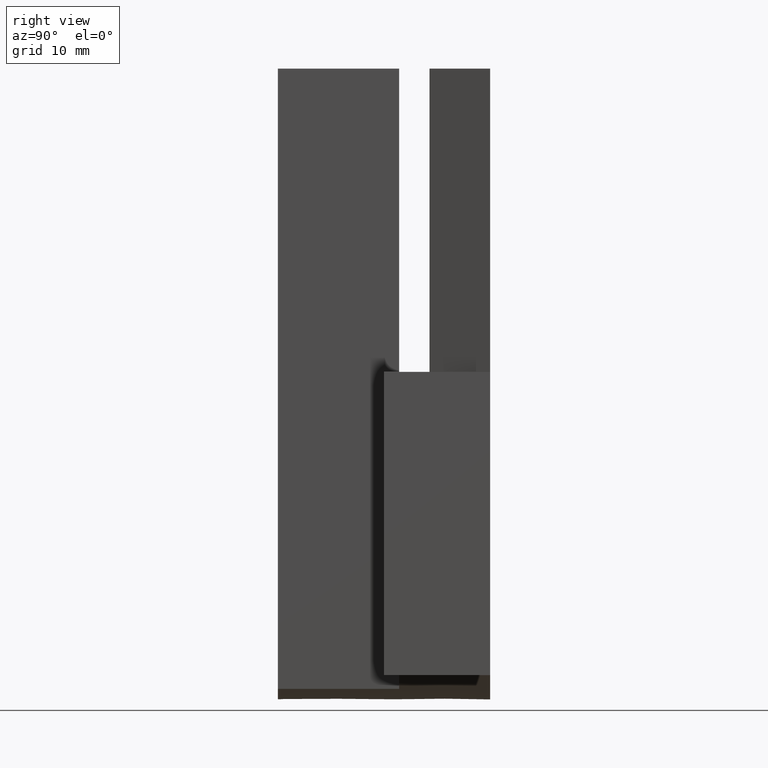
[diagram: clean part render]
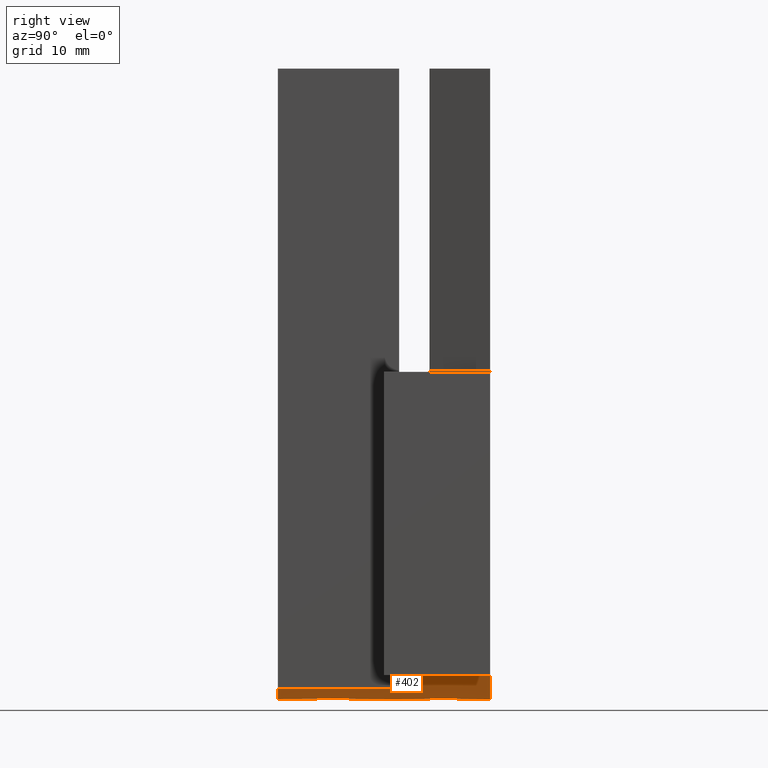
[diagram: same view with one face highlighted and labeled with its STEP entity id]
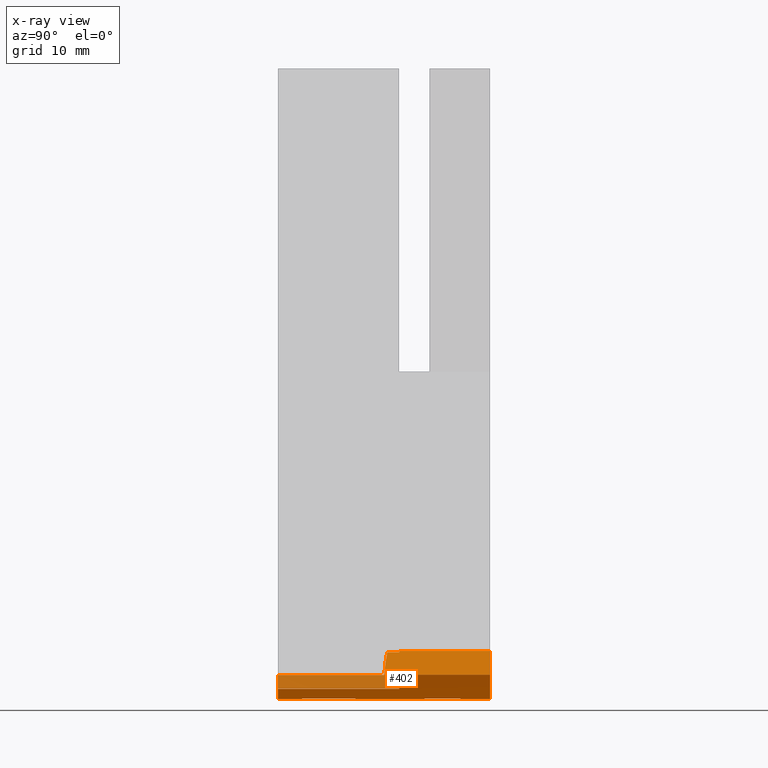
[diagram: x-ray of the same camera — body ghosted, the highlighted face saturated]
A machine part, right view. The second image highlights one B-rep face of the part: STEP entity #402.
The next image is the same camera in x-ray: the body ghosted, the highlighted face saturated — about 22% of this face is hidden behind the body in this view.
In plain terms, the highlighted face is a freeform B-spline surface patch.
Its self-contained STEP definition (entity closure, byte-faithful):
#107=B_SPLINE_SURFACE_WITH_KNOTS('',3,1,((#574,#575),(#576,#577),(#578,
#579),(#580,#581),(#582,#583),(#584,#585),(#586,#587)),.UNSPECIFIED.,.F.,
 .F.,.U.,(4,1,1,1,4),(2,2),(0.,0.25,0.5,0.75,1.),(0.,22.0937546743774),
 .UNSPECIFIED.);
#122=VECTOR('',#445,1.);
#138=VECTOR('',#466,1.);
#161=LINE('',#526,#122);
#177=LINE('',#597,#138);
#186=VERTEX_POINT('',#486);
#187=VERTEX_POINT('',#487);
#190=VERTEX_POINT('',#495);
#192=VERTEX_POINT('',#501);
#196=VERTEX_POINT('',#511);
#200=VERTEX_POINT('',#527);
#211=VERTEX_POINT('',#572);
#212=VERTEX_POINT('',#596);
#215=B_SPLINE_CURVE_WITH_KNOTS('',3,(#482,#483,#484,#485),.UNSPECIFIED.,
 .F.,.U.,(4,4),(-0.690991863041183,0.),.UNSPECIFIED.);
#216=B_SPLINE_CURVE_WITH_KNOTS('',3,(#497,#498,#499,#500),.UNSPECIFIED.,
 .F.,.U.,(4,4),(0.,1.37),.UNSPECIFIED.);
#217=B_SPLINE_CURVE_WITH_KNOTS('',3,(#512,#513,#514,#515),.UNSPECIFIED.,
 .F.,.U.,(4,4),(0.,1.37),.UNSPECIFIED.);
#218=B_SPLINE_CURVE_WITH_KNOTS('',3,(#553,#554,#555,#556,#557,#558,#559,
#560),.UNSPECIFIED.,.F.,.U.,(4,2,2,4),(0.,0.732328172806701,1.08271797790238,
1.39317423581127),.UNSPECIFIED.);
#219=B_SPLINE_CURVE_WITH_KNOTS('',3,(#565,#566,#567,#568,#569,#570,#571),
 .UNSPECIFIED.,.F.,.U.,(4,1,1,1,4),(0.,0.25,0.5,0.75,1.),.UNSPECIFIED.);
#220=B_SPLINE_CURVE_WITH_KNOTS('',3,(#588,#589,#590,#591,#592,#593,#594,
#595),.UNSPECIFIED.,.F.,.U.,(4,2,2,4),(0.,0.732094420139848,1.07029212507306,
1.37600662563691),.UNSPECIFIED.);
#221=EDGE_CURVE('',#186,#187,#215,.T.);
#226=EDGE_CURVE('',#190,#192,#216,.T.);
#232=EDGE_CURVE('',#196,#187,#217,.T.);
#238=EDGE_CURVE('',#186,#200,#161,.T.);
#251=EDGE_CURVE('',#192,#196,#218,.T.);
#254=EDGE_CURVE('',#200,#211,#219,.F.);
#256=EDGE_CURVE('',#212,#190,#220,.T.);
#257=EDGE_CURVE('',#211,#212,#177,.T.);
#315=ORIENTED_EDGE('',*,*,#221,.T.);
#316=ORIENTED_EDGE('',*,*,#232,.F.);
#317=ORIENTED_EDGE('',*,*,#251,.F.);
#318=ORIENTED_EDGE('',*,*,#226,.F.);
#319=ORIENTED_EDGE('',*,*,#256,.F.);
#320=ORIENTED_EDGE('',*,*,#257,.F.);
#321=ORIENTED_EDGE('',*,*,#254,.F.);
#322=ORIENTED_EDGE('',*,*,#238,.F.);
#366=EDGE_LOOP('',(#315,#316,#317,#318,#319,#320,#321,#322));
#384=FACE_BOUND('',#366,.T.);
#402=ADVANCED_FACE('',(#384),#107,.F.);
#445=DIRECTION('',(0.,1.,0.));
#466=DIRECTION('',(0.,-1.,0.));
#482=CARTESIAN_POINT('',(1.24999999999999,0.437898055179241,-2.49999999999998));
#483=CARTESIAN_POINT('',(1.16011397943074,0.442608781905864,-2.45685471012674));
#484=CARTESIAN_POINT('',(1.07022795886149,0.447319508632489,-2.41370942025349));
#485=CARTESIAN_POINT('',(0.980341938292233,0.452030235359113,-2.40269039000978));
#486=CARTESIAN_POINT('',(1.25,0.43789805517924,-2.49999999999998));
#487=CARTESIAN_POINT('',(1.,0.451,-2.40559999999998));
#495=CARTESIAN_POINT('',(0.499999999999992,4.37095678986282E-17,-2.55679999999997));
#497=CARTESIAN_POINT('',(0.499999999999992,-0.019685039370079,-2.55679999999997));
#498=CARTESIAN_POINT('',(0.499999999999993,0.16010498687664,-2.55679999999997));
#499=CARTESIAN_POINT('',(0.499999999999995,0.33989501312336,-2.55679999999997));
#500=CARTESIAN_POINT('',(0.499999999999996,0.519685039370079,-2.55679999999997));
#501=CARTESIAN_POINT('',(0.5,0.5,-2.55679999999997));
#511=CARTESIAN_POINT('',(1.,0.5,-2.40559999999998));
#512=CARTESIAN_POINT('',(1.,0.519685039370079,-2.40559999999998));
#513=CARTESIAN_POINT('',(1.,0.33989501312336,-2.40559999999998));
#514=CARTESIAN_POINT('',(1.,0.16010498687664,-2.40559999999998));
#515=CARTESIAN_POINT('',(1.,-0.019685039370079,-2.40559999999998));
#526=CARTESIAN_POINT('',(1.24999999999999,-3.4741643059798,-2.49999999999998));
#527=CARTESIAN_POINT('',(1.24999999999999,0.875,-2.49999999999998));
#553=CARTESIAN_POINT('',(0.480314960629917,0.5,-2.56448642973503));
#554=CARTESIAN_POINT('',(0.570239441521331,0.5,-2.53057533428953));
#555=CARTESIAN_POINT('',(0.660102666609881,0.5,-2.47944660482287));
#556=CARTESIAN_POINT('',(0.793012286424079,0.5,-2.42585744611378));
#557=CARTESIAN_POINT('',(0.838664925830264,0.5,-2.41086032656842));
#558=CARTESIAN_POINT('',(0.925757303103109,0.5,-2.39795890922153));
#559=CARTESIAN_POINT('',(0.967950318082869,0.5,-2.39812119456858));
#560=CARTESIAN_POINT('',(1.01968503937008,0.5,-2.40946523809266));
#565=CARTESIAN_POINT('',(-8.39223703653661E-15,0.875,-2.49999999999995));
#566=CARTESIAN_POINT('',(0.104166666666656,0.875,-2.54999999999996));
#567=CARTESIAN_POINT('',(0.312499999999986,0.875,-2.64999999999996));
#568=CARTESIAN_POINT('',(0.624999999999992,0.875,-2.49999999999998));
#569=CARTESIAN_POINT('',(0.937499999999992,0.875,-2.34999999999998));
#570=CARTESIAN_POINT('',(1.14583333333333,0.875,-2.44999999999998));
#571=CARTESIAN_POINT('',(1.24999999999999,0.875,-2.49999999999998));
#572=CARTESIAN_POINT('',(-8.39223703653661E-15,0.875,-2.49999999999995));
#574=CARTESIAN_POINT('',(-8.39223703653661E-15,-3.4741643059798,-2.49999999999995));
#575=CARTESIAN_POINT('',(-8.39223703653661E-15,5.2241643059798,-2.49999999999995));
#576=CARTESIAN_POINT('',(0.104166666666656,-3.4741643059798,-2.54999999999996));
#577=CARTESIAN_POINT('',(0.104166666666656,5.2241643059798,-2.54999999999996));
#578=CARTESIAN_POINT('',(0.312499999999986,-3.4741643059798,-2.64999999999996));
#579=CARTESIAN_POINT('',(0.312499999999986,5.2241643059798,-2.64999999999996));
#580=CARTESIAN_POINT('',(0.624999999999992,-3.4741643059798,-2.49999999999998));
#581=CARTESIAN_POINT('',(0.624999999999992,5.2241643059798,-2.49999999999998));
#582=CARTESIAN_POINT('',(0.937499999999992,-3.4741643059798,-2.34999999999998));
#583=CARTESIAN_POINT('',(0.937499999999992,5.2241643059798,-2.34999999999998));
#584=CARTESIAN_POINT('',(1.14583333333333,-3.4741643059798,-2.44999999999998));
#585=CARTESIAN_POINT('',(1.14583333333333,5.2241643059798,-2.44999999999998));
#586=CARTESIAN_POINT('',(1.24999999999999,-3.4741643059798,-2.49999999999998));
#587=CARTESIAN_POINT('',(1.24999999999999,5.2241643059798,-2.49999999999998));
#588=CARTESIAN_POINT('',(-8.39223703653661E-15,0.,-2.49999999999995));
#589=CARTESIAN_POINT('',(0.0866141732283283,9.08608340569808E-18,-2.54157480314956));
#590=CARTESIAN_POINT('',(0.17322834645668,-9.08608340569972E-18,-2.58314960629917));
#591=CARTESIAN_POINT('',(0.299854728212617,4.19739922898524E-18,-2.60190738797095));
#592=CARTESIAN_POINT('',(0.340608797792548,-5.15650322808514E-18,-2.60181108190873));
#593=CARTESIAN_POINT('',(0.434197524855042,4.66123154011714E-18,-2.58234349402926));
#594=CARTESIAN_POINT('',(0.478239572067207,-4.34775232119665E-18,-2.56627180630594));
#595=CARTESIAN_POINT('',(0.519685039370079,0.,-2.54863740931258));
#596=CARTESIAN_POINT('',(-8.39223703653661E-15,0.,-2.49999999999995));
#597=CARTESIAN_POINT('',(-8.39223703653661E-15,-3.4741643059798,-2.49999999999995));